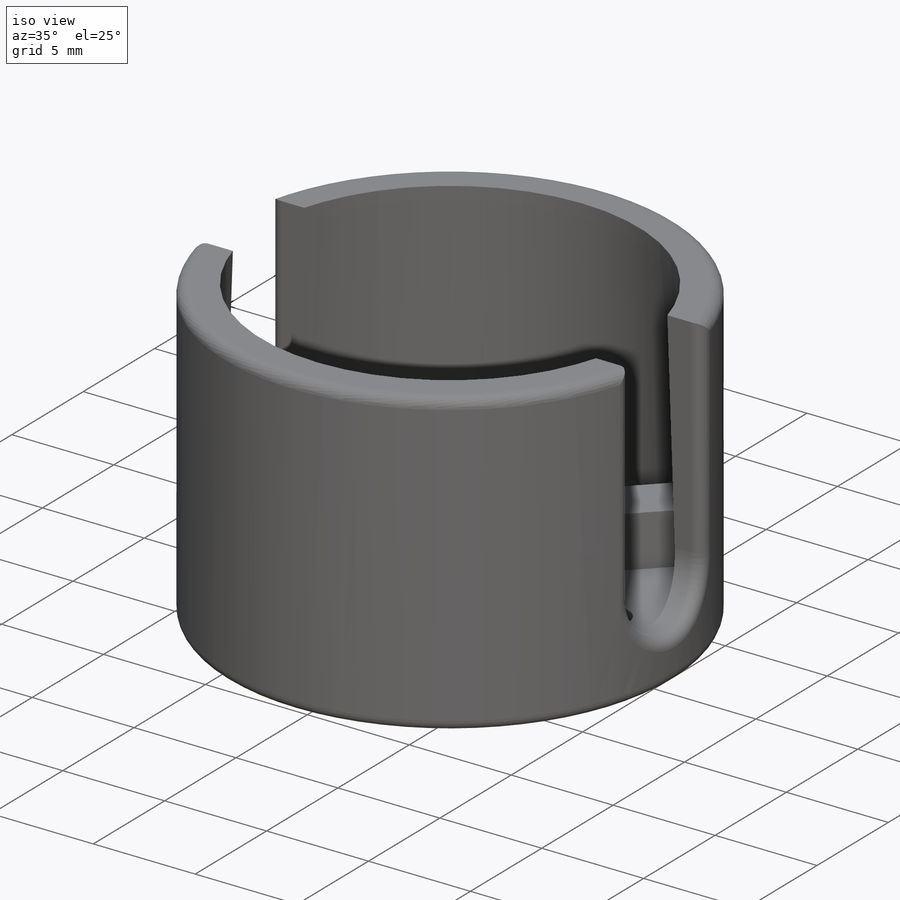
[diagram: iso view]
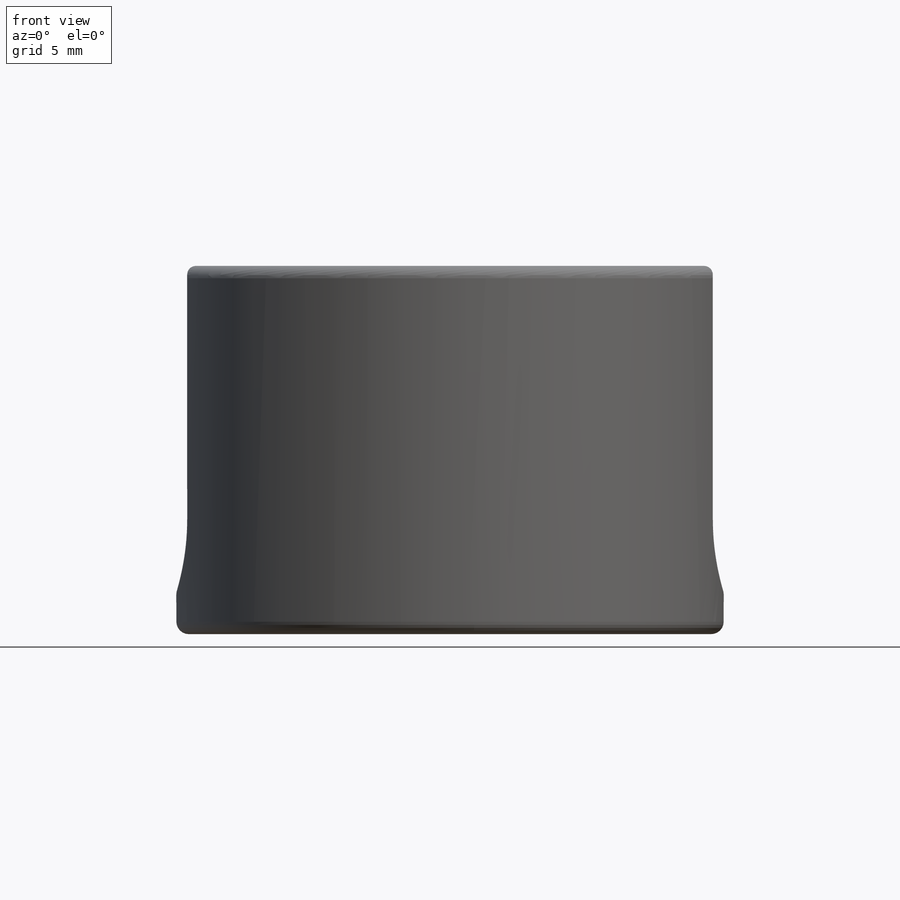
[diagram: front view]
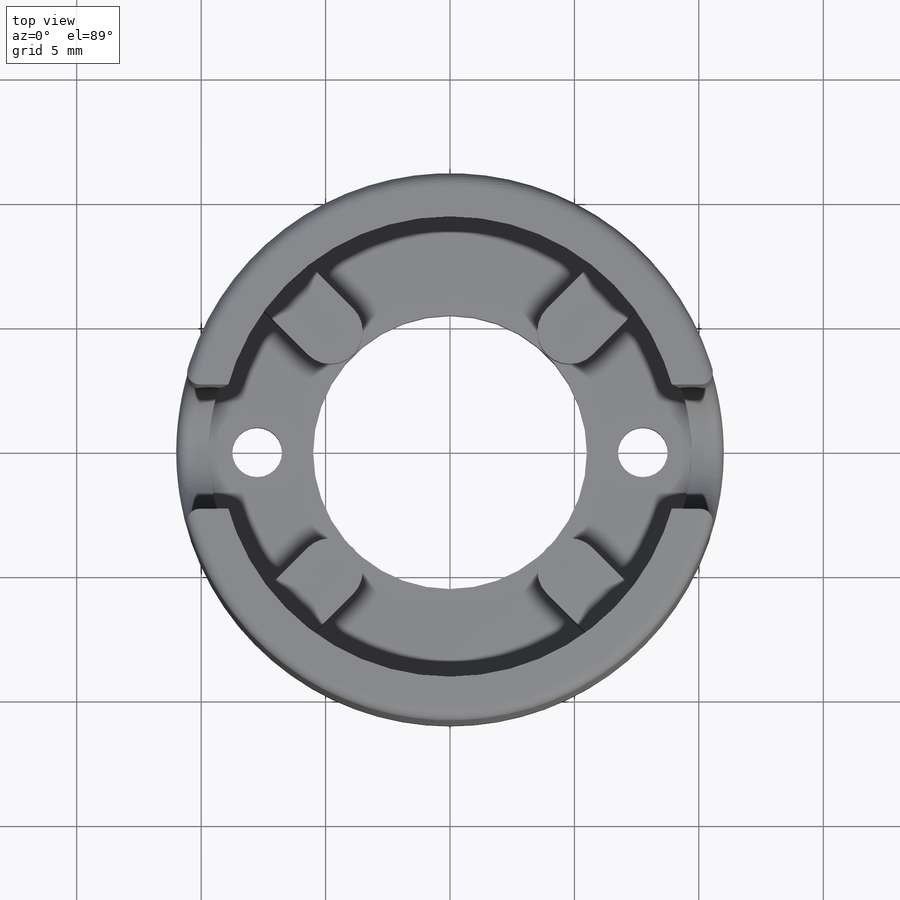
[diagram: top view]
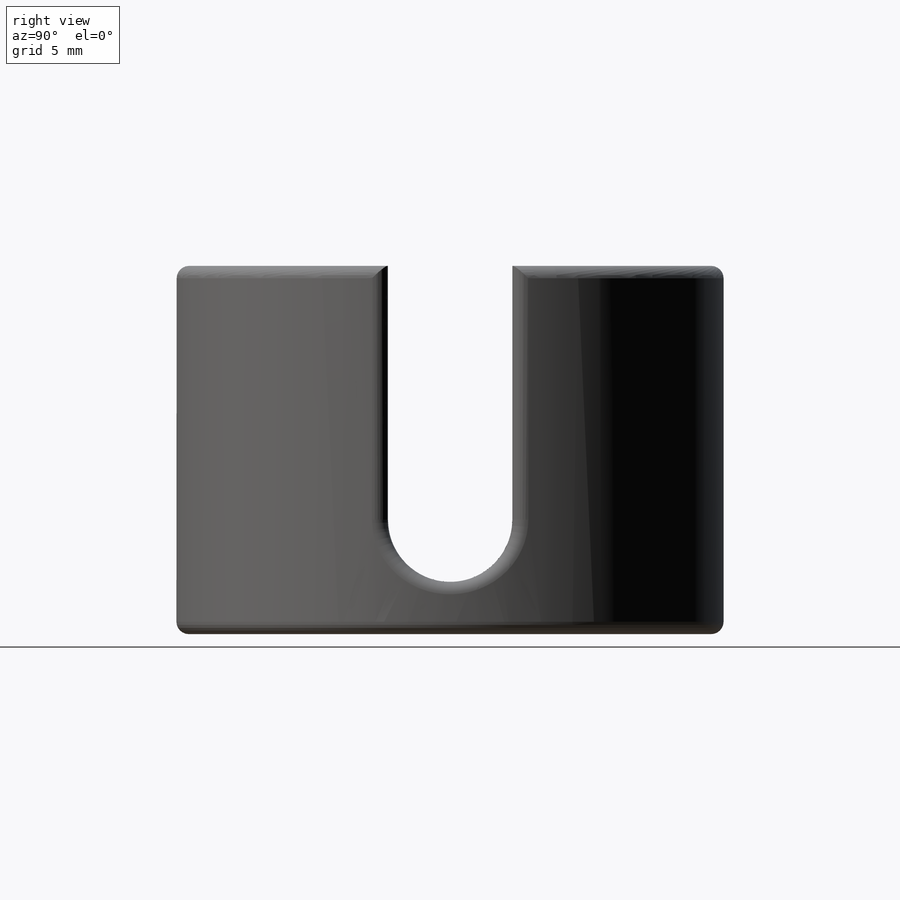
[diagram: right view]
SOLIDWORKS PART (.sldprt)
format: sldprt  version: not decoded by parser v0  size: 284,672 bytes
history: native  units: mm
features: sketch x6, cut_extrude x4, extrude x2, material x1, plane x1, fillet x1 (+12 scaffold rows collapsed)
feature tree (27):
  scaffold x12  (default folders/planes/origin — collapsed)
  material  "ABS"
  sketch  "Sketch1"  dims[D1=22.0mm]
  extrude  "Boss-Extrude1"  Depth=14.8mm
  sketch  "Sketch2"  dims[D1=18.5mm]
  cut_extrude  "Cut-Extrude1"  Depth=12.7mm
  sketch  "Sketch3"  dims[D1=11.0mm]
  cut_extrude  "Cut-Extrude2"  [1 undecoded]
  sketch  "Sketch4"  dims[c1.D2=2.6mm c1.D1=45.0deg c2.D2=45.0deg c2.D3=4.0]
  extrude  "Boss-Extrude2"  Depth=2.5mm
  plane  "Plane1"
  sketch  "Sketch6"
  cut_extrude  "Cut-Extrude3"  [1 undecoded]
  sketch  "Sketch7"  dims[D1=2.0mm D2=7.75mm]
  cut_extrude  "Cut-Extrude4"  [1 undecoded]
  fillet  "Fillet1"  Radius=0.5mm
decode coverage: 9 of 13 modeling features carry decoded parameters
note: 3 parameter values undecoded
summary: no parameter record found for 3 features
note: suppression state not decoded; provenance and decode notes live in map.json
